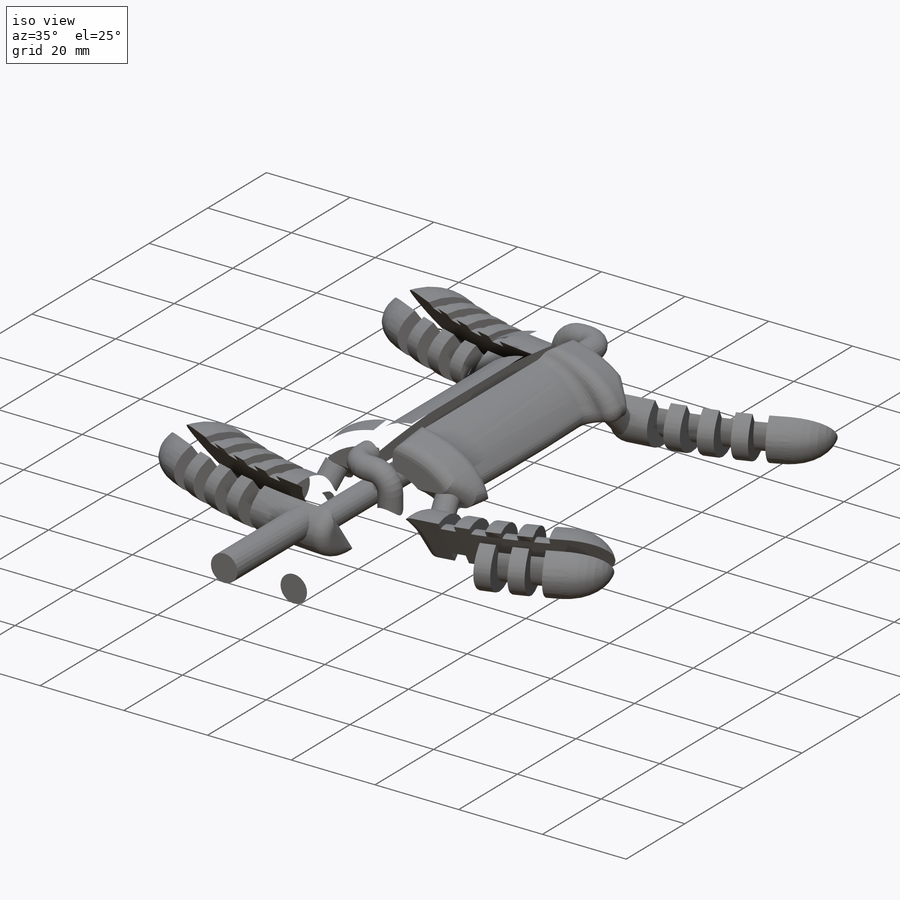
[diagram: iso view]
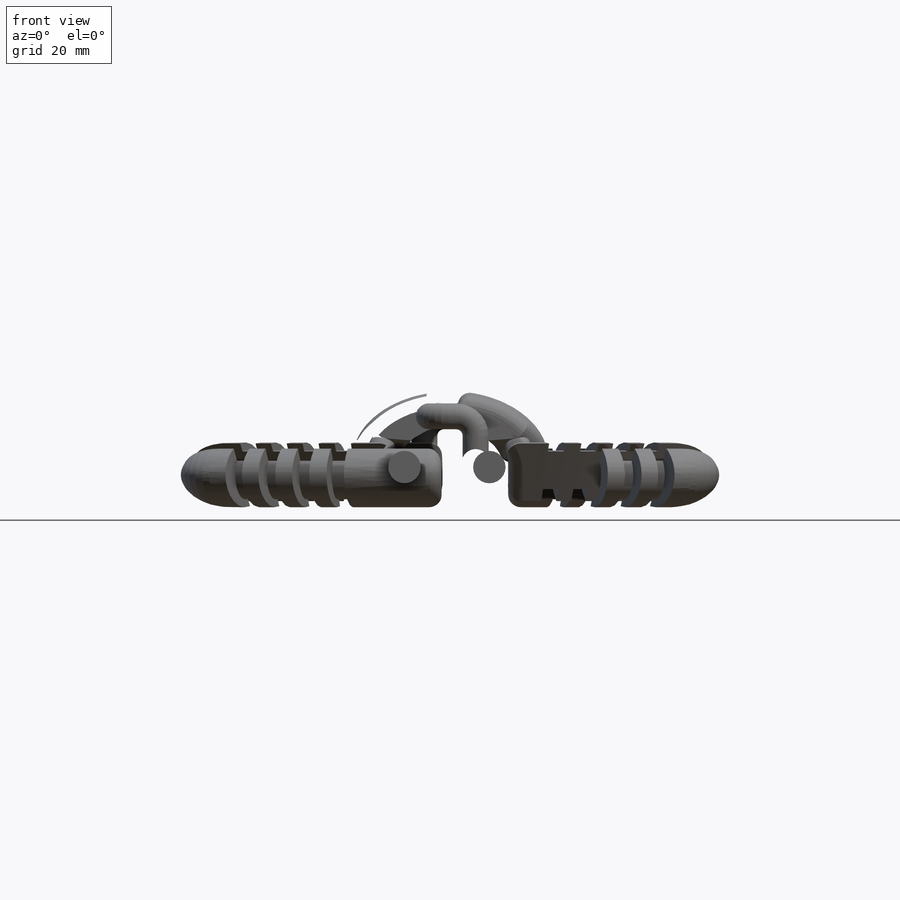
[diagram: front view]
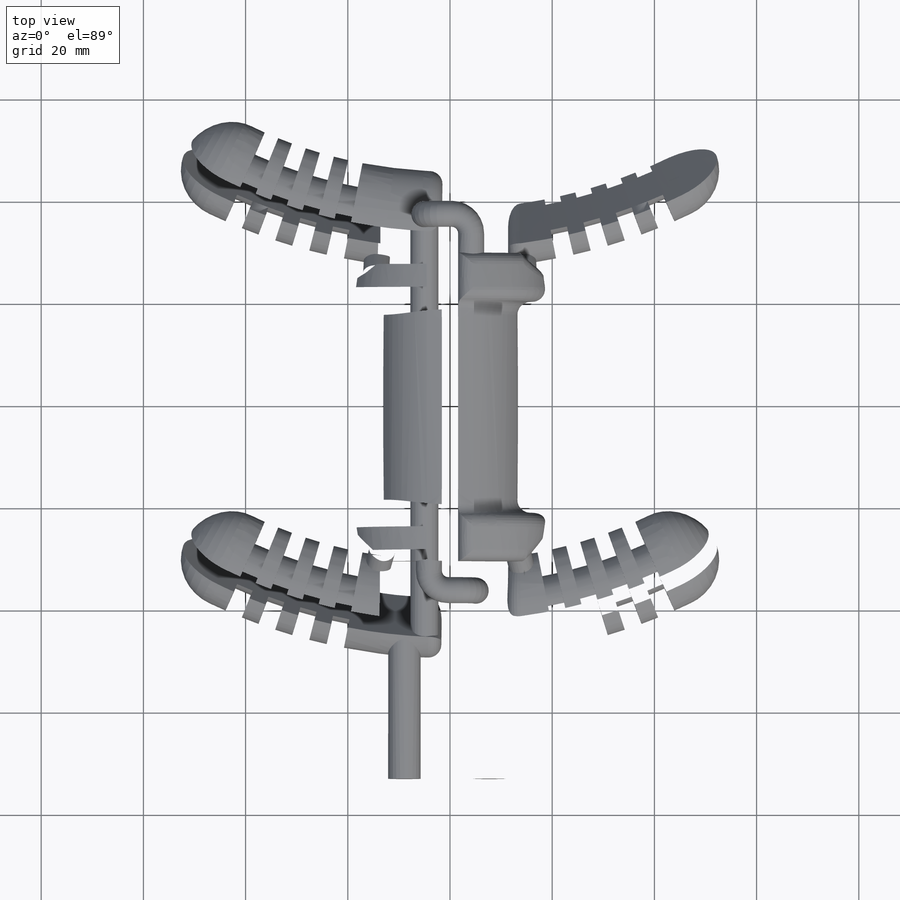
[diagram: top view]
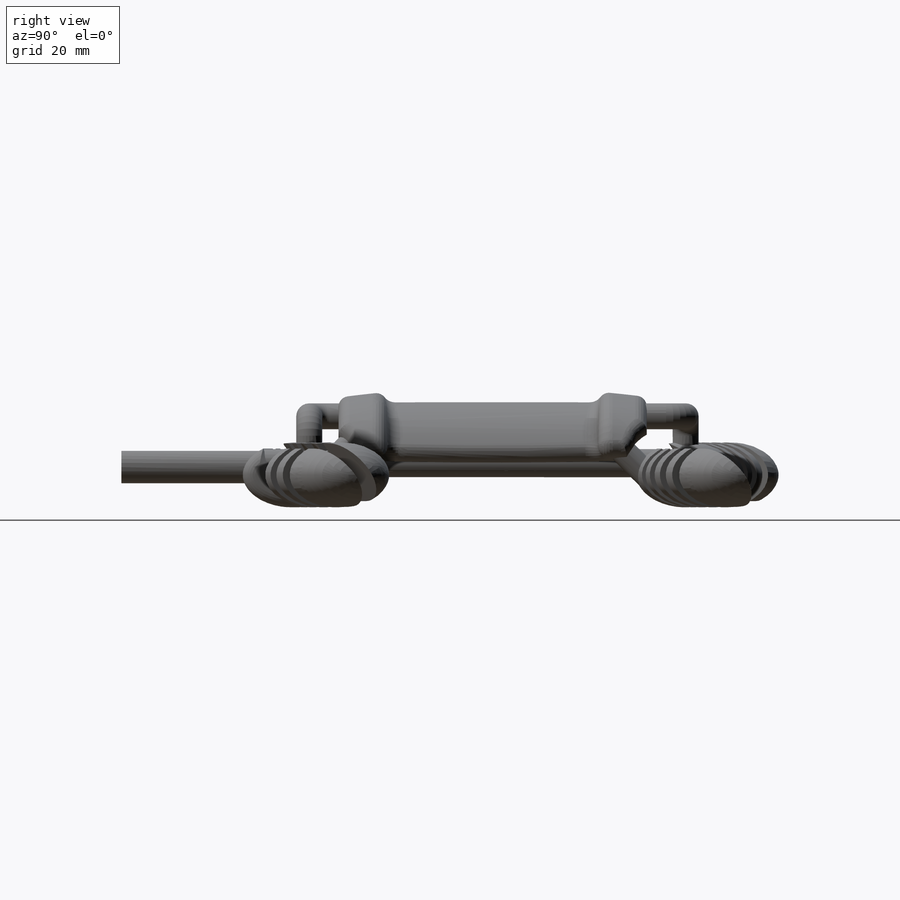
[diagram: right view]
SOLIDWORKS PART (.sldprt)
format: sldprt  version: not decoded by parser v0  size: 8,626,688 bytes
history: native  units: mm
features: sketch x26, plane x26, fillet x13, extrude x6, cut_extrude x3, sweep x2, material x1, move_body x1, boolean_combine x1, surface_op x1 + 1 further entry (+20 scaffold rows collapsed; 8 parser-record rows omitted)
feature tree (109):
  scaffold x20  (default folders/planes/origin — collapsed)
  material  "Material <not specified>"
  sketch  "Sketch2-makerbot_body_02"
  sketch  "Sketch26-makerbot_body_02"
  sketch  "Sketch28-makerbot_body_02"
  sketch  "Sketch16-makerbot_body_02"  dims[D1=2.54mm]
  sketch  "Sketch17-makerbot_body_02"  dims[D3=6.35mm D1=3.429mm D2=3.429mm D4=8.255mm]
  sketch  "Sketch30-makerbot_body_02"  dims[c1.D3=9.525mm c1.D4=9.525mm c1.D1=0.0mm c1.D2=0.0mm c2.D3=3.175mm]
  sketch  "Sketch31-makerbot_body_02"  dims[D5=6.35mm D1=3.429mm D2=3.429mm D3=3.429mm D4=3.429mm]
  plane  "Front Plane-makerbot_body_02"
  plane  "Top Plane-makerbot_body_02"
  plane  "Right Plane-makerbot_body_02"
  plane  "Plane2-makerbot_body_02"
  plane  "Plane4-makerbot_body_02"
  plane  "Plane3-makerbot_body_02"
  plane  "Plane9-makerbot_body_02"
  plane  "Plane10-makerbot_body_02"
  sketch  "Sketch39-makerbot_body_02"
  plane  "Plane11-makerbot_body_02"
  "makerbot_body_02"
  parser-record x8  (decoder bookkeeping rows leaked as tree rows — omitted from the tree; the rows remain in map.json)
  move_body  "Body-Move/Copy2"
  sketch  "Sketch8"  dims[D1=76.2mm D2=76.2mm]
  extrude  "Boss-Extrude1"  Depth=203.2mm
  boolean_combine  "Combine1"
  plane  "Plane19"
  cut_extrude  "Cut-Extrude4"  [1 undecoded]
  sketch  "Sketch30-RIBBED_body_02<5>"
  sketch  "Sketch10"
  extrude  "Boss-Extrude2"  [1 undecoded]
  sketch  "Sketch29"  dims[D1=25.4mm]
  cut_extrude  "Cut-Extrude5"  [1 undecoded]
  plane  "Plane9"
  plane  "Plane11"
  plane  "Plane10"
  plane  "Plane17"
  sketch  "Sketch17"  dims[D1=1.27mm]
  plane  "Plane13"
  plane  "Plane16"
  plane  "Plane20"
  plane  "Plane21"  Offset=3.175mm
  plane  "Plane22"
  plane  "Plane23"  Offset=3.175mm
  sketch  "Sketch31"  dims[D1=25.4mm]
  plane  "Plane24"
  plane  "Plane25"  Offset=3.175mm
  sketch  "Sketch32"  dims[D1=25.4mm]
  surface_op  "Surface-Fill2"
  plane  "Plane26"
  plane  "Plane27"  Offset=3.175mm
  sketch  "Sketch11"  dims[D1=5.08mm D2=2.54mm D3=2.54mm]
  extrude  "Boss-Extrude3"  [1 undecoded]
  sketch  "Sketch12"  dims[D1=5.08mm]
  extrude  "Boss-Extrude4"  [1 undecoded]
  sketch  "Sketch13"  dims[D1=5.08mm]
  extrude  "Boss-Extrude5"  [1 undecoded]
  plane  "Plane12"
  sketch  "Sketch14"  dims[D1=5.08mm]
  extrude  "Boss-Extrude6"  [1 undecoded]
  sketch  "Sketch18"
  sketch  "Sketch19"  dims[D1=3.175mm]
  plane  "Plane14"
  sketch  "Sketch33"  dims[D1=5.08mm]
  sketch  "3DSketch1"  dims[c1.D3=3.81mm c1.D2=7.62mm c2.D3=~9.673809mm c2.D4=~9.673809mm c3.D3=~13.764928mm c3.D1=0.0mm]
  sweep  "Sweep5"
  sketch  "Sketch34"  dims[D1=5.08mm]
  sketch  "3DSketch2"  dims[D3=3.81mm D2=5.715mm D1=0.0mm]
  sweep  "Sweep6"
  fillet  "Fillet3"  Radius=2.54mm
  fillet  "Fillet4"  Radius=2.54mm
  fillet  "Fillet5"  Radius=2.54mm
  fillet  "Fillet6"  Radius=2.54mm
  fillet  "Fillet7"  Radius=2.54mm
  sketch  "Sketch35"  dims[D1=3.175mm D2=9.525mm]
  cut_extrude  "Cut-Extrude7"  [1 undecoded]
  fillet  "Fillet8"  Radius=2.54mm
  fillet  "Fillet9"  Radius=2.54mm
  fillet  "Fillet10"  Radius=2.54mm
  fillet  "Fillet11"  Radius=2.54mm
  fillet  "Fillet12"  Radius=2.54mm
  fillet  "Fillet13"  Radius=2.54mm
  fillet  "Fillet14"  Radius=2.54mm
  fillet  "Fillet15"  Radius=2.54mm
decode coverage: 33 of 53 modeling features carry decoded parameters; 1 rows unclassified (native names shown)
note: ~ marks probable driven/reference dimensions
note: 8 parameter values undecoded
summary: no parameter record found for 8 features
note: suppression state not decoded; provenance and decode notes live in map.json
